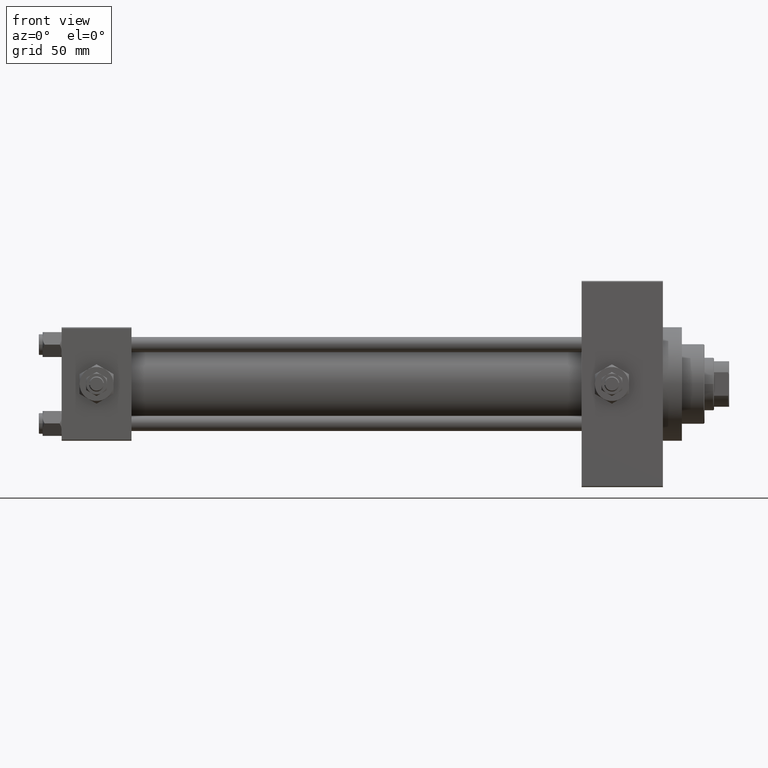
[diagram: clean part render]
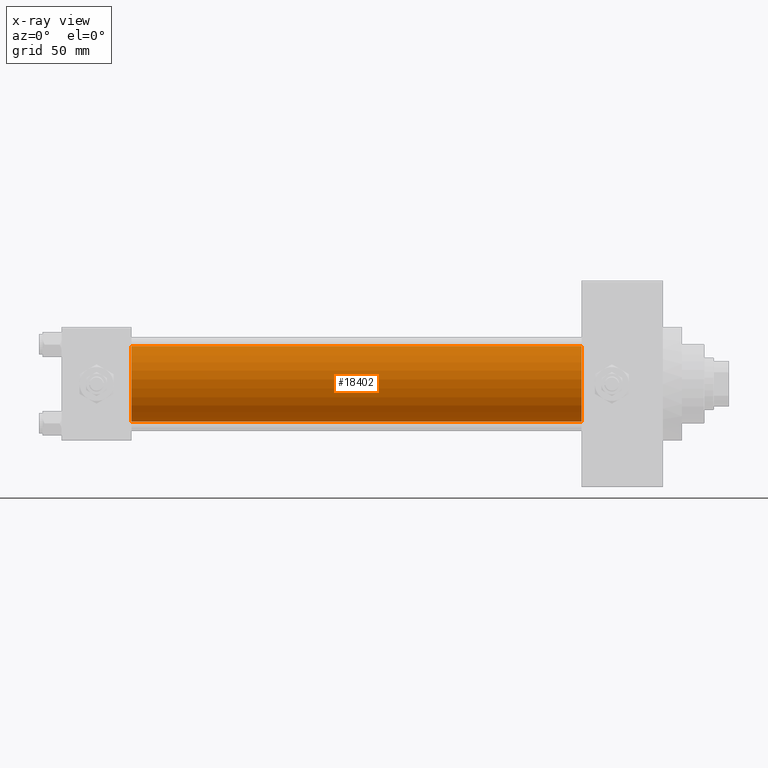
[diagram: x-ray — body ghosted, one internal face saturated and labeled with its STEP entity id]
A machine part, front view, then the same camera in x-ray: the body is ghosted and one INTERNAL B-rep face — a face not visible from any outside direction — is saturated and labeled: STEP entity #18402.
In plain terms, the highlighted cylindrical surface (partial cylindrical patch) has radius 20 mm, axis along (-1, -0, -0).
Its self-contained STEP definition (entity closure, byte-faithful):
#2157 = CARTESIAN_POINT ( 'NONE',  ( 37.00000000000000000, -2.602085213965210642E-15, 0.000000000000000000 ) ) ;
#3985 = FACE_OUTER_BOUND ( 'NONE', #12656, .T. ) ;
#4921 = DIRECTION ( 'NONE',  ( 1.000000000000000000, 0.000000000000000000, 0.000000000000000000 ) ) ;
#7151 = DIRECTION ( 'NONE',  ( -1.000000000000000000, -0.000000000000000000, -0.000000000000000000 ) ) ;
#9224 = AXIS2_PLACEMENT_3D ( 'NONE', #16255, #46893, #35677 ) ;
#11611 = LINE ( 'NONE', #37309, #48632 ) ;
#12656 = EDGE_LOOP ( 'NONE', ( #33561, #16758, #26335, #22400 ) ) ;
#13623 = VERTEX_POINT ( 'NONE', #30058 ) ;
#15200 = CARTESIAN_POINT ( 'NONE',  ( 274.9999999999999432, -2.602085213965210642E-15, 0.000000000000000000 ) ) ;
#15480 = CARTESIAN_POINT ( 'NONE',  ( 37.00000000000000000, -1.527916156705042519E-16, -20.00000000000000000 ) ) ;
#16255 = CARTESIAN_POINT ( 'NONE',  ( 274.9999999999999432, -2.602085213965210642E-15, 0.000000000000000000 ) ) ;
#16758 = ORIENTED_EDGE ( 'NONE', *, *, #37501, .T. ) ;
#18402 = ADVANCED_FACE ( 'NONE', ( #3985 ), #38003, .F. ) ;
#19100 = AXIS2_PLACEMENT_3D ( 'NONE', #15200, #30408, #19698 ) ;
#19540 = EDGE_CURVE ( 'NONE', #13623, #35386, #11611, .T. ) ;
#19668 = VECTOR ( 'NONE', #48592, 1000.000000000000000 ) ;
#19698 = DIRECTION ( 'NONE',  ( 0.000000000000000000, 0.000000000000000000, 1.000000000000000000 ) ) ;
#21937 = CIRCLE ( 'NONE', #9224, 20.00000000000000000 ) ;
#22400 = ORIENTED_EDGE ( 'NONE', *, *, #19540, .F. ) ;
#26159 = CARTESIAN_POINT ( 'NONE',  ( 274.9999999999999432, -1.527916156705042519E-16, -20.00000000000000000 ) ) ;
#26335 = ORIENTED_EDGE ( 'NONE', *, *, #40405, .F. ) ;
#26748 = VERTEX_POINT ( 'NONE', #15480 ) ;
#30058 = CARTESIAN_POINT ( 'NONE',  ( 274.9999999999999432, -2.602085213965210642E-15, 20.00000000000000000 ) ) ;
#30079 = CIRCLE ( 'NONE', #42805, 20.00000000000000000 ) ;
#30408 = DIRECTION ( 'NONE',  ( -1.000000000000000000, -0.000000000000000000, -0.000000000000000000 ) ) ;
#30603 = VERTEX_POINT ( 'NONE', #38728 ) ;
#33561 = ORIENTED_EDGE ( 'NONE', *, *, #34142, .T. ) ;
#33876 = LINE ( 'NONE', #26159, #19668 ) ;
#34142 = EDGE_CURVE ( 'NONE', #13623, #30603, #21937, .T. ) ;
#35325 = DIRECTION ( 'NONE',  ( 0.000000000000000000, 0.000000000000000000, -1.000000000000000000 ) ) ;
#35386 = VERTEX_POINT ( 'NONE', #40592 ) ;
#35677 = DIRECTION ( 'NONE',  ( 0.000000000000000000, 0.000000000000000000, -1.000000000000000000 ) ) ;
#37309 = CARTESIAN_POINT ( 'NONE',  ( 274.9999999999999432, -2.602085213965210642E-15, 20.00000000000000000 ) ) ;
#37501 = EDGE_CURVE ( 'NONE', #30603, #26748, #33876, .T. ) ;
#38003 = CYLINDRICAL_SURFACE ( 'NONE', #19100, 20.00000000000000000 ) ;
#38728 = CARTESIAN_POINT ( 'NONE',  ( 274.9999999999999432, -1.527916156705042519E-16, -20.00000000000000000 ) ) ;
#40405 = EDGE_CURVE ( 'NONE', #35386, #26748, #30079, .T. ) ;
#40592 = CARTESIAN_POINT ( 'NONE',  ( 37.00000000000000000, -2.602085213965210642E-15, 20.00000000000000000 ) ) ;
#42805 = AXIS2_PLACEMENT_3D ( 'NONE', #2157, #4921, #35325 ) ;
#46893 = DIRECTION ( 'NONE',  ( 1.000000000000000000, 0.000000000000000000, 0.000000000000000000 ) ) ;
#48592 = DIRECTION ( 'NONE',  ( -1.000000000000000000, -0.000000000000000000, -0.000000000000000000 ) ) ;
#48632 = VECTOR ( 'NONE', #7151, 1000.000000000000000 ) ;